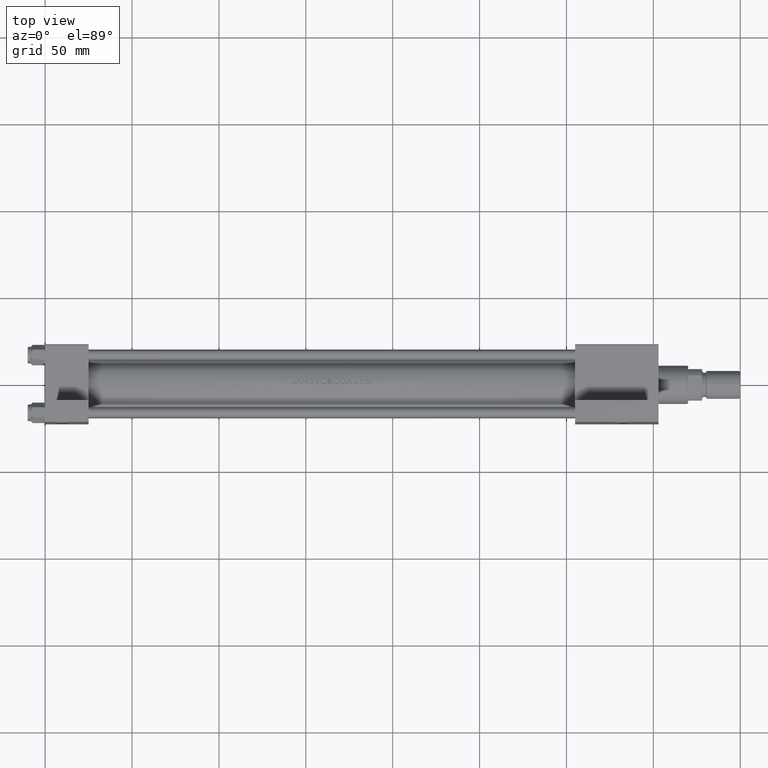
[diagram: clean part render]
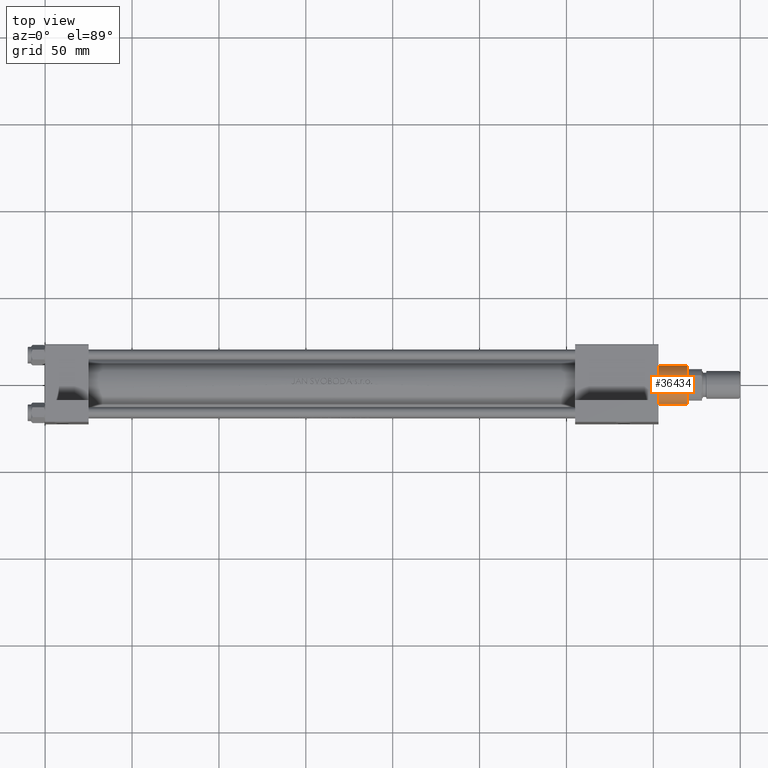
[diagram: same view with one face highlighted and labeled with its STEP entity id]
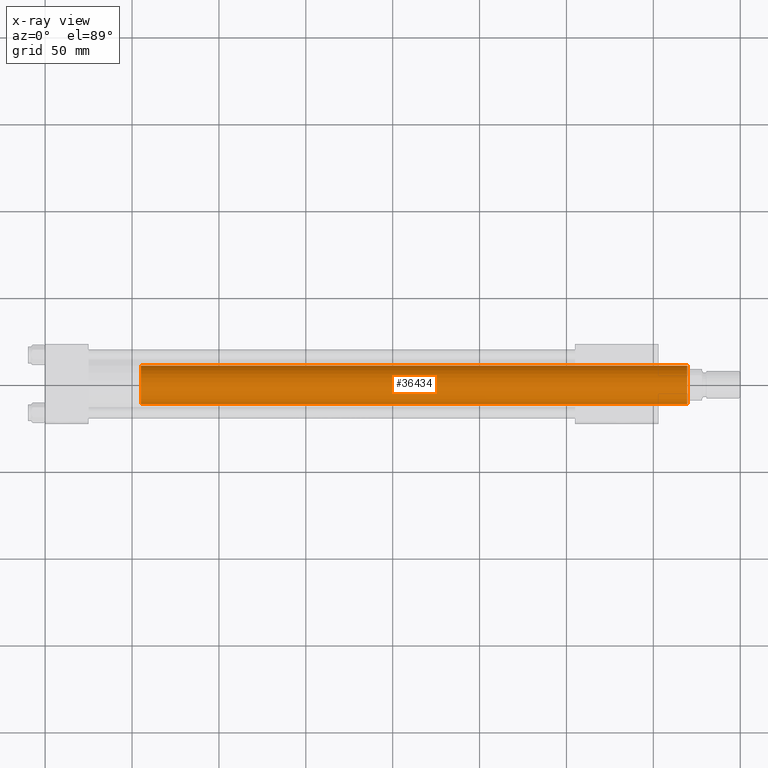
[diagram: x-ray of the same camera — body ghosted, the highlighted face saturated]
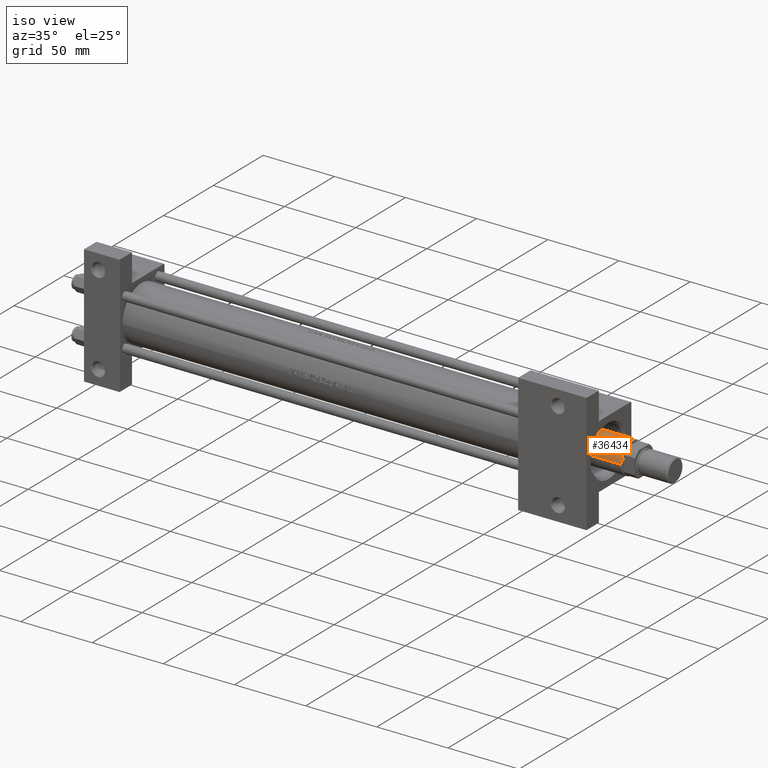
[diagram: same view with one face highlighted and labeled with its STEP entity id]
A machine part, top view. The second image highlights one B-rep face of the part: STEP entity #36434.
The next image is the same camera in x-ray: the body ghosted, the highlighted face saturated — about 0% of this face is hidden behind the body in this view.
A second angle (iso view) of the same face is appended — the face is thin or edge-on in the first view.
In plain terms, the highlighted cylindrical surface (edge-blend (fillet) strip) has radius 11 mm, axis along (-1, 0, 0).
Its self-contained STEP definition (entity closure, byte-faithful):
#1603 = EDGE_LOOP ( 'NONE', ( #23256, #32714, #36097, #40234 ) ) ;
#3734 = LINE ( 'NONE', #22646, #17901 ) ;
#5300 = DIRECTION ( 'NONE',  ( 0.000000000000000000, 0.000000000000000000, 1.000000000000000000 ) ) ;
#5586 = CARTESIAN_POINT ( 'NONE',  ( 11.00000000000000000, 1.347111479062088405E-15, 30.00000000000000000 ) ) ;
#7741 = DIRECTION ( 'NONE',  ( 1.000000000000000000, 0.000000000000000000, 0.000000000000000000 ) ) ;
#8748 = DIRECTION ( 'NONE',  ( -0.000000000000000000, -0.000000000000000000, -1.000000000000000000 ) ) ;
#8961 = CARTESIAN_POINT ( 'NONE',  ( 0.000000000000000000, 0.000000000000000000, 30.00000000000000000 ) ) ;
#11160 = DIRECTION ( 'NONE',  ( 0.000000000000000000, 0.000000000000000000, -1.000000000000000000 ) ) ;
#14692 = AXIS2_PLACEMENT_3D ( 'NONE', #8961, #5300, #46341 ) ;
#17901 = VECTOR ( 'NONE', #18781, 1000.000000000000000 ) ;
#18781 = DIRECTION ( 'NONE',  ( -0.000000000000000000, -0.000000000000000000, -1.000000000000000000 ) ) ;
#19791 = VERTEX_POINT ( 'NONE', #5586 ) ;
#22468 = CARTESIAN_POINT ( 'NONE',  ( 11.00000000000000000, 1.347111479062088405E-15, 344.4999999999999432 ) ) ;
#22646 = CARTESIAN_POINT ( 'NONE',  ( -11.00000000000000000, 0.000000000000000000, 345.0000000000000000 ) ) ;
#23237 = CARTESIAN_POINT ( 'NONE',  ( -11.00000000000000000, 0.000000000000000000, 344.4999999999999432 ) ) ;
#23256 = ORIENTED_EDGE ( 'NONE', *, *, #42382, .F. ) ;
#23541 = LINE ( 'NONE', #38360, #36595 ) ;
#28029 = CARTESIAN_POINT ( 'NONE',  ( -11.00000000000000000, 0.000000000000000000, 30.00000000000000000 ) ) ;
#30090 = EDGE_CURVE ( 'NONE', #41648, #40564, #46400, .T. ) ;
#31602 = DIRECTION ( 'NONE',  ( -1.000000000000000000, 0.000000000000000000, 0.000000000000000000 ) ) ;
#32088 = FACE_OUTER_BOUND ( 'NONE', #1603, .T. ) ;
#32714 = ORIENTED_EDGE ( 'NONE', *, *, #30090, .T. ) ;
#32886 = EDGE_CURVE ( 'NONE', #40897, #19791, #44931, .T. ) ;
#33257 = CARTESIAN_POINT ( 'NONE',  ( 0.000000000000000000, 0.000000000000000000, 344.4999999999999432 ) ) ;
#34754 = CARTESIAN_POINT ( 'NONE',  ( 0.000000000000000000, 0.000000000000000000, 345.0000000000000000 ) ) ;
#36097 = ORIENTED_EDGE ( 'NONE', *, *, #39476, .T. ) ;
#36434 = ADVANCED_FACE ( 'NONE', ( #32088 ), #46893, .T. ) ;
#36595 = VECTOR ( 'NONE', #8748, 1000.000000000000000 ) ;
#38360 = CARTESIAN_POINT ( 'NONE',  ( 11.00000000000000000, 1.347111479062088405E-15, 345.0000000000000000 ) ) ;
#38724 = AXIS2_PLACEMENT_3D ( 'NONE', #34754, #42524, #31602 ) ;
#39476 = EDGE_CURVE ( 'NONE', #40564, #40897, #3734, .T. ) ;
#40234 = ORIENTED_EDGE ( 'NONE', *, *, #32886, .T. ) ;
#40564 = VERTEX_POINT ( 'NONE', #23237 ) ;
#40897 = VERTEX_POINT ( 'NONE', #28029 ) ;
#41648 = VERTEX_POINT ( 'NONE', #22468 ) ;
#42382 = EDGE_CURVE ( 'NONE', #41648, #19791, #23541, .T. ) ;
#42524 = DIRECTION ( 'NONE',  ( -0.000000000000000000, -0.000000000000000000, -1.000000000000000000 ) ) ;
#44931 = CIRCLE ( 'NONE', #14692, 11.00000000000000000 ) ;
#46341 = DIRECTION ( 'NONE',  ( 1.000000000000000000, 0.000000000000000000, 0.000000000000000000 ) ) ;
#46400 = CIRCLE ( 'NONE', #47172, 11.00000000000000000 ) ;
#46893 = CYLINDRICAL_SURFACE ( 'NONE', #38724, 11.00000000000000000 ) ;
#47172 = AXIS2_PLACEMENT_3D ( 'NONE', #33257, #11160, #7741 ) ;